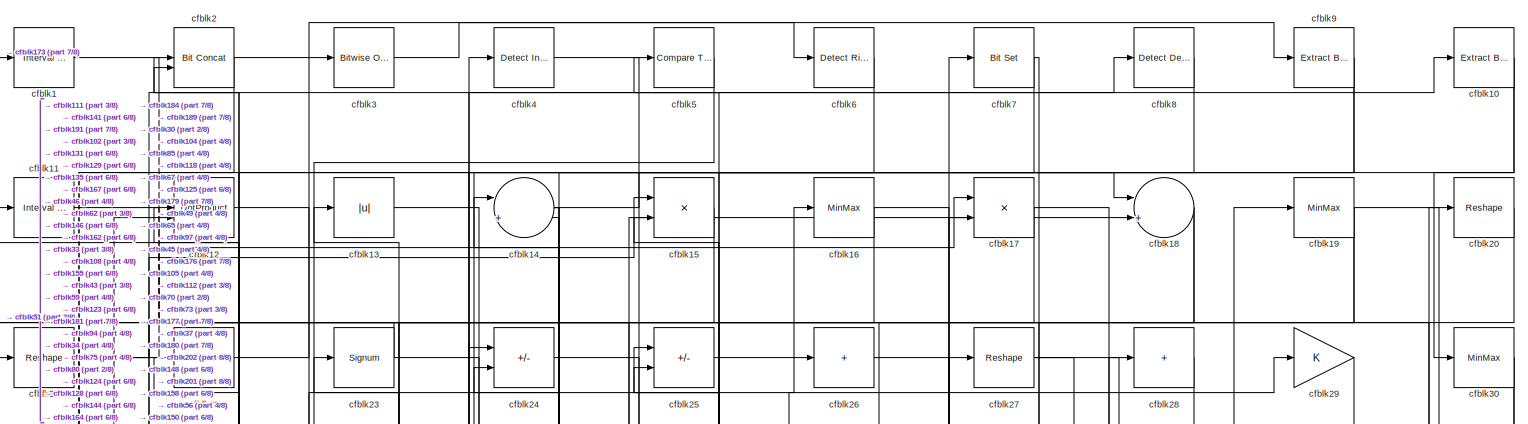
[diagram: root canvas - part 1/8, full width, top band]
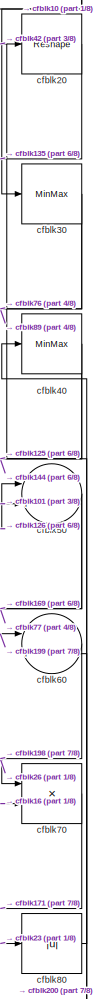
[diagram: root canvas - part 2/8, top right region]
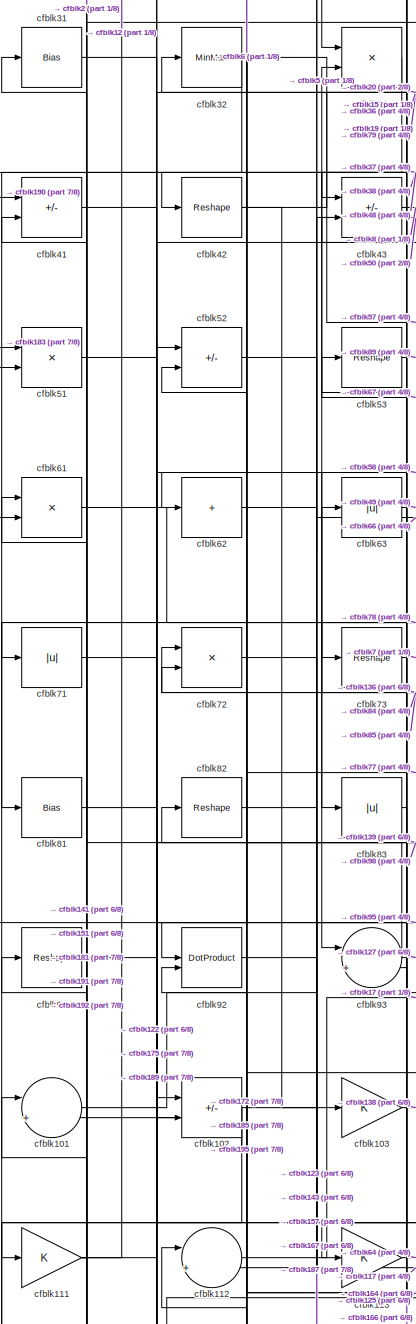
[diagram: root canvas - part 3/8, top left region]
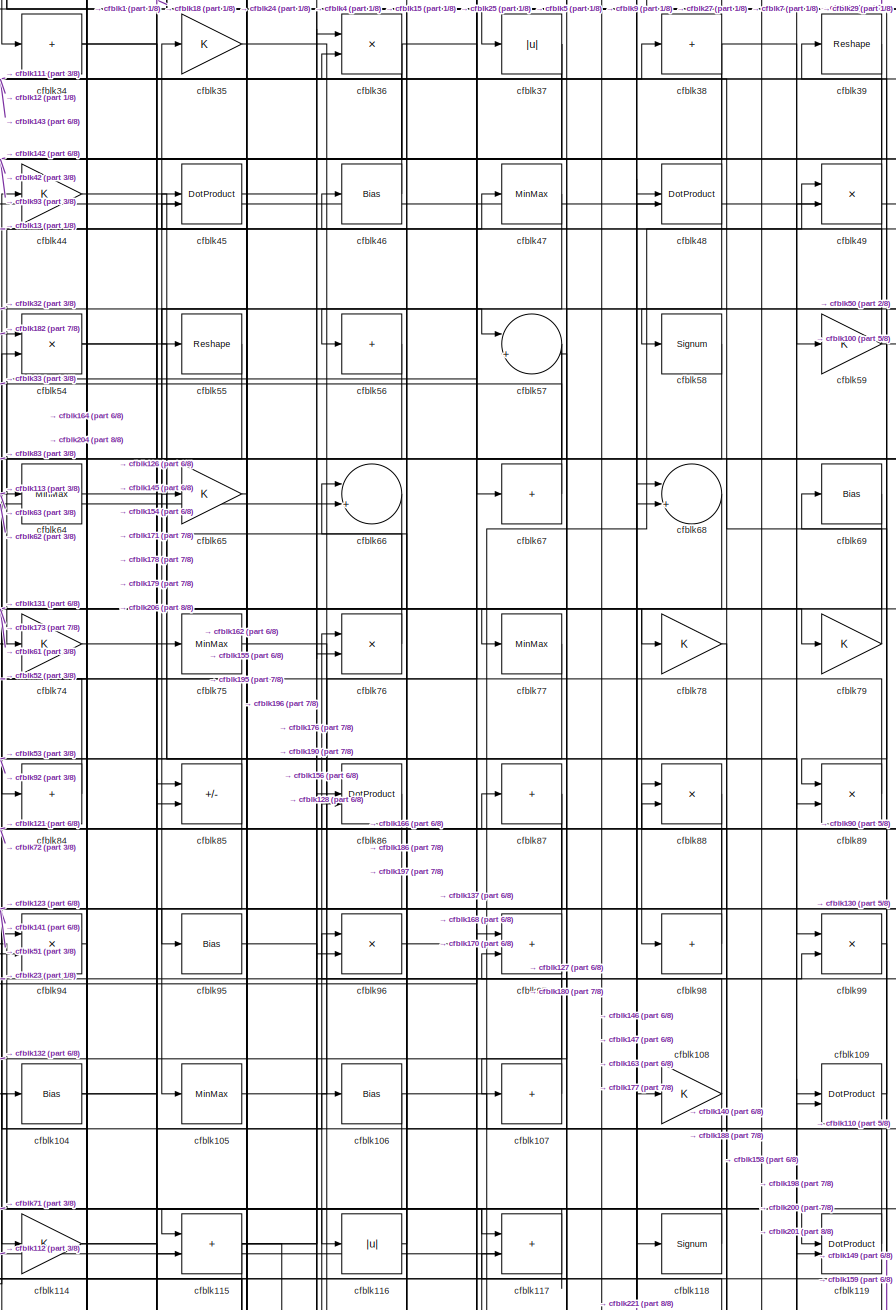
[diagram: root canvas - part 4/8, top center region]
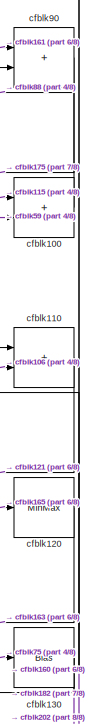
[diagram: root canvas - part 5/8, middle right region]
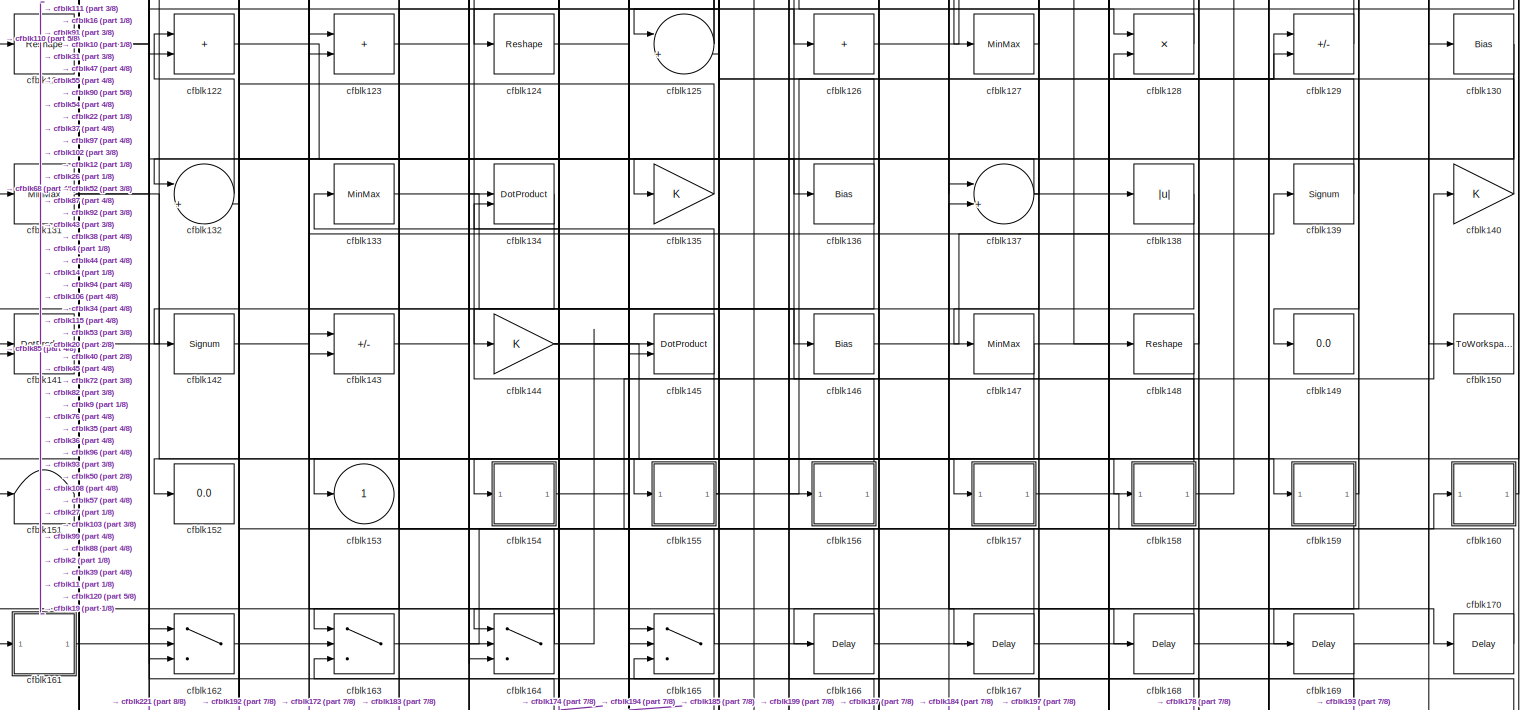
[diagram: root canvas - part 6/8, full width, middle band]
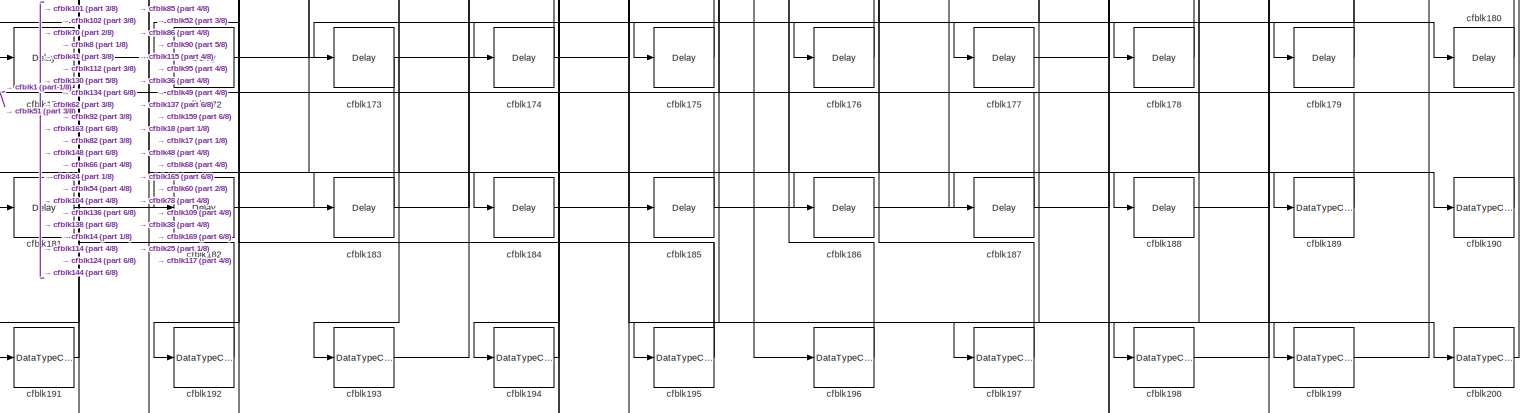
[diagram: root canvas - part 7/8, full width, bottom band]
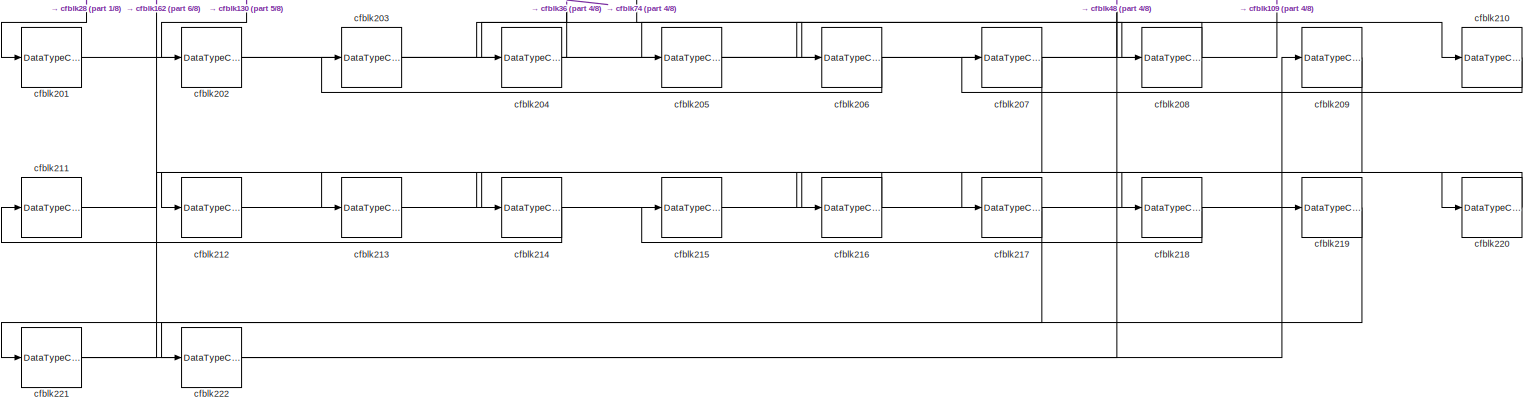
[diagram: root canvas - part 8/8, full width, bottom band]
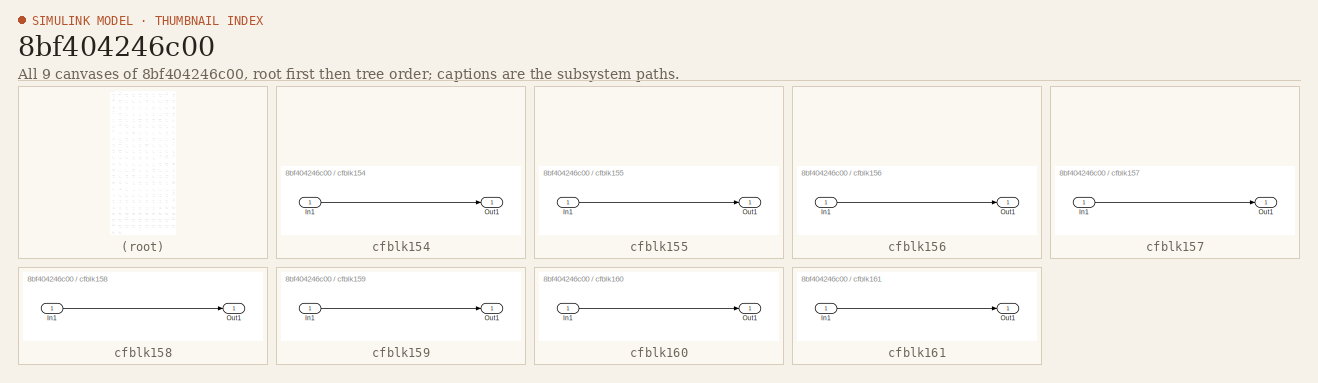
[diagram: thumbnail index - all 9 canvases of the model, root first then tree order]
MODEL slx_8bf404246c00
KIND model
CONFIG AbsTol = auto
CONFIG EnableMultiTasking = off
CONFIG FixedStep = auto
CONFIG MaxStep = auto
CONFIG MinStep = auto
CONFIG RelTol = 1e-3
CONFIG SampleTimeConstraint = Unconstrained
CONFIG SolverName = VariableStepAuto
CONFIG StartTime = 0.0
CONFIG StopTime = 10.0
BLOCK [Reference] cfblk1  REF=hdlsllib/Logic and Bit
Operations/Interval Test
  SourceBlock = hdlsllib/Logic and Bit\nOperations/Interval Test
  SourceType = Interval Test
BLOCK [Reference] cfblk10  REF=simulink/Logic and Bit
Operations/Extract Bits
  LibrarySourceBlock = hdlsllib/Logic and Bit\nOperations/Extract Bits
  SourceBlock = simulink/Logic and Bit\nOperations/Extract Bits
  SourceType = Extract Bits
BLOCK [Sum] cfblk100
  IconShape = rectangular
BLOCK [Sum] cfblk101
  Inputs = |++
BLOCK [Sum] cfblk102
  IconShape = rectangular
  Inputs = +-
BLOCK [Gain] cfblk103
BLOCK [Bias] cfblk104
  Bias = 0.0
  SaturateOnIntegerOverflow = off
BLOCK [MinMax] cfblk105
BLOCK [Bias] cfblk106
  Bias = 0.0
  SaturateOnIntegerOverflow = off
BLOCK [Sum] cfblk107
  IconShape = rectangular
  Inputs = +
BLOCK [Gain] cfblk108
BLOCK [DotProduct] cfblk109
  OutDataTypeStr = Inherit: Inherit via internal rule
BLOCK [Reference] cfblk11  REF=hdlsllib/Logic and Bit
Operations/Interval Test
  SourceBlock = hdlsllib/Logic and Bit\nOperations/Interval Test
  SourceType = Interval Test
BLOCK [Sum] cfblk110
  IconShape = rectangular
BLOCK [Gain] cfblk111
BLOCK [Sum] cfblk112
  Inputs = |++
BLOCK [Gain] cfblk113
BLOCK [Gain] cfblk114
BLOCK [Sum] cfblk115
  IconShape = rectangular
BLOCK [Abs] cfblk116
  SaturateOnIntegerOverflow = off
BLOCK [Sum] cfblk117
  IconShape = rectangular
BLOCK [Signum] cfblk118
BLOCK [DotProduct] cfblk119
  OutDataTypeStr = Inherit: Inherit via internal rule
BLOCK [DotProduct] cfblk12
  OutDataTypeStr = Inherit: Inherit via internal rule
BLOCK [MinMax] cfblk120
BLOCK [Reshape] cfblk121
BLOCK [Sum] cfblk122
  IconShape = rectangular
BLOCK [Sum] cfblk123
  IconShape = rectangular
BLOCK [Reshape] cfblk124
BLOCK [Sum] cfblk125
  Inputs = |++
BLOCK [Sum] cfblk126
  IconShape = rectangular
  Inputs = +
BLOCK [MinMax] cfblk127
BLOCK [Product] cfblk128
  Inputs = */
  RndMeth = Zero
  SaturateOnIntegerOverflow = on
BLOCK [Sum] cfblk129
  IconShape = rectangular
  Inputs = +-
BLOCK [Abs] cfblk13
  SaturateOnIntegerOverflow = off
BLOCK [Bias] cfblk130
  Bias = 0.0
  SaturateOnIntegerOverflow = off
BLOCK [MinMax] cfblk131
BLOCK [Sum] cfblk132
  Inputs = |++
BLOCK [MinMax] cfblk133
BLOCK [DotProduct] cfblk134
  OutDataTypeStr = Inherit: Inherit via internal rule
BLOCK [Gain] cfblk135
BLOCK [Bias] cfblk136
  Bias = 0.0
  SaturateOnIntegerOverflow = off
BLOCK [Sum] cfblk137
  Inputs = |++
BLOCK [Abs] cfblk138
  SaturateOnIntegerOverflow = off
BLOCK [Signum] cfblk139
BLOCK [Sum] cfblk14
  Inputs = |++
BLOCK [Gain] cfblk140
BLOCK [DotProduct] cfblk141
  OutDataTypeStr = Inherit: Inherit via internal rule
BLOCK [Signum] cfblk142
BLOCK [Sum] cfblk143
  IconShape = rectangular
  Inputs = +-
BLOCK [Gain] cfblk144
BLOCK [DotProduct] cfblk145
  OutDataTypeStr = Inherit: Inherit via internal rule
BLOCK [Bias] cfblk146
  Bias = 0.0
  SaturateOnIntegerOverflow = off
BLOCK [MinMax] cfblk147
BLOCK [Reshape] cfblk148
BLOCK [Display] cfblk149
  Decimation = 1
BLOCK [Product] cfblk15
  Inputs = */
  RndMeth = Zero
  SaturateOnIntegerOverflow = on
BLOCK [ToWorkspace] cfblk150
  MaxDataPoints = inf
  SampleTime = -1
  SaveFormat = Timeseries
  VariableName = simout
BLOCK [Terminator] cfblk151
BLOCK [Display] cfblk152
  Decimation = 1
BLOCK [Outport] cfblk153
  VectorParamsAs1DForOutWhenUnconnected = off
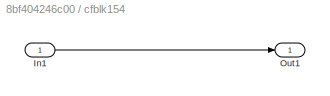
BLOCK [SubSystem] cfblk154
  LibrarySourceBlock = hdlsllib/Ports &\nSubsystems/Subsystem
BLOCK [Inport] cfblk154/In1
BLOCK [Outport] cfblk154/Out1
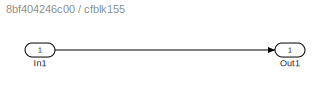
BLOCK [SubSystem] cfblk155
  LibrarySourceBlock = hdlsllib/Ports &\nSubsystems/Subsystem
BLOCK [Inport] cfblk155/In1
BLOCK [Outport] cfblk155/Out1
BLOCK [SubSystem] cfblk156
  LibrarySourceBlock = hdlsllib/Ports &\nSubsystems/Subsystem
BLOCK [Inport] cfblk156/In1
BLOCK [Outport] cfblk156/Out1
BLOCK [SubSystem] cfblk157
  LibrarySourceBlock = hdlsllib/Ports &\nSubsystems/Subsystem
BLOCK [Inport] cfblk157/In1
BLOCK [Outport] cfblk157/Out1
BLOCK [SubSystem] cfblk158
  LibrarySourceBlock = hdlsllib/Ports &\nSubsystems/Subsystem
BLOCK [Inport] cfblk158/In1
BLOCK [Outport] cfblk158/Out1
BLOCK [SubSystem] cfblk159
  LibrarySourceBlock = hdlsllib/Ports &\nSubsystems/Subsystem
BLOCK [Inport] cfblk159/In1
BLOCK [Outport] cfblk159/Out1
BLOCK [MinMax] cfblk16
BLOCK [SubSystem] cfblk160
  LibrarySourceBlock = hdlsllib/Ports &\nSubsystems/Subsystem
BLOCK [Inport] cfblk160/In1
BLOCK [Outport] cfblk160/Out1
BLOCK [SubSystem] cfblk161
  LibrarySourceBlock = hdlsllib/Ports &\nSubsystems/Subsystem
BLOCK [Inport] cfblk161/In1
BLOCK [Outport] cfblk161/Out1
BLOCK [Switch] cfblk162
  InputSameDT = off
  SaturateOnIntegerOverflow = off
BLOCK [Switch] cfblk163
  InputSameDT = off
  SaturateOnIntegerOverflow = off
BLOCK [Switch] cfblk164
  InputSameDT = off
  SaturateOnIntegerOverflow = off
BLOCK [Switch] cfblk165
  InputSameDT = off
  SaturateOnIntegerOverflow = off
BLOCK [Delay] cfblk166
  InputPortMap = u0
  SampleTime = 1
BLOCK [Delay] cfblk167
  InputPortMap = u0
  SampleTime = 1
BLOCK [Delay] cfblk168
  InputPortMap = u0
  SampleTime = 1
BLOCK [Delay] cfblk169
  InputPortMap = u0
  SampleTime = 1
BLOCK [Product] cfblk17
  Inputs = */
  RndMeth = Zero
  SaturateOnIntegerOverflow = on
BLOCK [Delay] cfblk170
  InputPortMap = u0
  SampleTime = 1
BLOCK [Delay] cfblk171
  InputPortMap = u0
  SampleTime = 1
BLOCK [Delay] cfblk172
  InputPortMap = u0
  SampleTime = 1
BLOCK [Delay] cfblk173
  InputPortMap = u0
  SampleTime = 1
BLOCK [Delay] cfblk174
  InputPortMap = u0
  SampleTime = 1
BLOCK [Delay] cfblk175
  InputPortMap = u0
  SampleTime = 1
BLOCK [Delay] cfblk176
  InputPortMap = u0
  SampleTime = 1
BLOCK [Delay] cfblk177
  InputPortMap = u0
  SampleTime = 1
BLOCK [Delay] cfblk178
  InputPortMap = u0
  SampleTime = 1
BLOCK [Delay] cfblk179
  InputPortMap = u0
  SampleTime = 1
BLOCK [Sum] cfblk18
  Inputs = |++
BLOCK [Delay] cfblk180
  InputPortMap = u0
  SampleTime = 1
BLOCK [Delay] cfblk181
  InputPortMap = u0
  SampleTime = 1
BLOCK [Delay] cfblk182
  InputPortMap = u0
  SampleTime = 1
BLOCK [Delay] cfblk183
  InputPortMap = u0
  SampleTime = 1
BLOCK [Delay] cfblk184
  InputPortMap = u0
  SampleTime = 1
BLOCK [Delay] cfblk185
  InputPortMap = u0
  SampleTime = 1
BLOCK [Delay] cfblk186
  InputPortMap = u0
  SampleTime = 1
BLOCK [Delay] cfblk187
  InputPortMap = u0
  SampleTime = 1
BLOCK [Delay] cfblk188
  InputPortMap = u0
  SampleTime = 1
BLOCK [DataTypeConversion] cfblk189
  OutDataTypeStr = uint8
  RndMeth = Floor
  SaturateOnIntegerOverflow = off
BLOCK [MinMax] cfblk19
BLOCK [DataTypeConversion] cfblk190
  OutDataTypeStr = uint8
  RndMeth = Floor
  SaturateOnIntegerOverflow = off
BLOCK [DataTypeConversion] cfblk191
  OutDataTypeStr = uint8
  RndMeth = Floor
  SaturateOnIntegerOverflow = off
BLOCK [DataTypeConversion] cfblk192
  OutDataTypeStr = uint8
  RndMeth = Floor
  SaturateOnIntegerOverflow = off
BLOCK [DataTypeConversion] cfblk193
  OutDataTypeStr = uint8
  RndMeth = Floor
  SaturateOnIntegerOverflow = off
BLOCK [DataTypeConversion] cfblk194
  OutDataTypeStr = uint8
  RndMeth = Floor
  SaturateOnIntegerOverflow = off
BLOCK [DataTypeConversion] cfblk195
  RndMeth = Floor
  SaturateOnIntegerOverflow = off
BLOCK [DataTypeConversion] cfblk196
  OutDataTypeStr = uint8
  RndMeth = Floor
  SaturateOnIntegerOverflow = off
BLOCK [DataTypeConversion] cfblk197
  OutDataTypeStr = uint8
  RndMeth = Floor
  SaturateOnIntegerOverflow = off
BLOCK [DataTypeConversion] cfblk198
  OutDataTypeStr = uint8
  RndMeth = Floor
  SaturateOnIntegerOverflow = off
BLOCK [DataTypeConversion] cfblk199
  OutDataTypeStr = uint8
  RndMeth = Floor
  SaturateOnIntegerOverflow = off
BLOCK [Reference] cfblk2  REF=hdlsllib/Logic and Bit
Operations/Bit Concat
  SourceBlock = hdlsllib/Logic and Bit\nOperations/Bit Concat
  SourceType = Bit Concat
BLOCK [Reshape] cfblk20
BLOCK [DataTypeConversion] cfblk200
  OutDataTypeStr = uint8
  RndMeth = Floor
  SaturateOnIntegerOverflow = off
BLOCK [DataTypeConversion] cfblk201
  OutDataTypeStr = uint8
  RndMeth = Floor
  SaturateOnIntegerOverflow = off
BLOCK [DataTypeConversion] cfblk202
  OutDataTypeStr = uint8
  RndMeth = Floor
  SaturateOnIntegerOverflow = off
BLOCK [DataTypeConversion] cfblk203
  RndMeth = Floor
  SaturateOnIntegerOverflow = off
BLOCK [DataTypeConversion] cfblk204
  OutDataTypeStr = uint8
  RndMeth = Floor
  SaturateOnIntegerOverflow = off
BLOCK [DataTypeConversion] cfblk205
  RndMeth = Floor
  SaturateOnIntegerOverflow = off
BLOCK [DataTypeConversion] cfblk206
  OutDataTypeStr = uint8
  RndMeth = Floor
  SaturateOnIntegerOverflow = off
BLOCK [DataTypeConversion] cfblk207
  RndMeth = Floor
  SaturateOnIntegerOverflow = off
BLOCK [DataTypeConversion] cfblk208
  OutDataTypeStr = uint8
  RndMeth = Floor
  SaturateOnIntegerOverflow = off
BLOCK [DataTypeConversion] cfblk209
  RndMeth = Floor
  SaturateOnIntegerOverflow = off
BLOCK [Reshape] cfblk21
BLOCK [DataTypeConversion] cfblk210
  OutDataTypeStr = uint8
  RndMeth = Floor
  SaturateOnIntegerOverflow = off
BLOCK [DataTypeConversion] cfblk211
  RndMeth = Floor
  SaturateOnIntegerOverflow = off
BLOCK [DataTypeConversion] cfblk212
  OutDataTypeStr = uint8
  RndMeth = Floor
  SaturateOnIntegerOverflow = off
BLOCK [DataTypeConversion] cfblk213
  RndMeth = Floor
  SaturateOnIntegerOverflow = off
BLOCK [DataTypeConversion] cfblk214
  OutDataTypeStr = uint8
  RndMeth = Floor
  SaturateOnIntegerOverflow = off
BLOCK [DataTypeConversion] cfblk215
  RndMeth = Floor
  SaturateOnIntegerOverflow = off
BLOCK [DataTypeConversion] cfblk216
  OutDataTypeStr = uint8
  RndMeth = Floor
  SaturateOnIntegerOverflow = off
BLOCK [DataTypeConversion] cfblk217
  RndMeth = Floor
  SaturateOnIntegerOverflow = off
BLOCK [DataTypeConversion] cfblk218
  OutDataTypeStr = uint8
  RndMeth = Floor
  SaturateOnIntegerOverflow = off
BLOCK [DataTypeConversion] cfblk219
  RndMeth = Floor
  SaturateOnIntegerOverflow = off
BLOCK [MinMax] cfblk22
BLOCK [DataTypeConversion] cfblk220
  OutDataTypeStr = uint8
  RndMeth = Floor
  SaturateOnIntegerOverflow = off
BLOCK [DataTypeConversion] cfblk221
  RndMeth = Floor
  SaturateOnIntegerOverflow = off
BLOCK [DataTypeConversion] cfblk222
  OutDataTypeStr = uint8
  RndMeth = Floor
  SaturateOnIntegerOverflow = off
BLOCK [Signum] cfblk23
BLOCK [Sum] cfblk24
  IconShape = rectangular
  Inputs = +-
BLOCK [Sum] cfblk25
  IconShape = rectangular
  Inputs = +-
BLOCK [Sum] cfblk26
  IconShape = rectangular
  Inputs = +
BLOCK [Reshape] cfblk27
BLOCK [Sum] cfblk28
  IconShape = rectangular
  Inputs = +
BLOCK [Gain] cfblk29
BLOCK [Reference] cfblk3  REF=simulink/Logic and Bit
Operations/Bitwise
Operator
  LibrarySourceBlock = hdlsllib/Logic and Bit\nOperations/Bitwise\nOperator
  SourceBlock = simulink/Logic and Bit\nOperations/Bitwise\nOperator
  SourceType = Bitwise Operator
BLOCK [MinMax] cfblk30
BLOCK [Bias] cfblk31
  Bias = 0.0
  SaturateOnIntegerOverflow = off
BLOCK [MinMax] cfblk32
BLOCK [Product] cfblk33
  Inputs = */
  RndMeth = Zero
  SaturateOnIntegerOverflow = on
BLOCK [Sum] cfblk34
  IconShape = rectangular
  Inputs = +
BLOCK [Gain] cfblk35
BLOCK [Product] cfblk36
  Inputs = */
  RndMeth = Zero
  SaturateOnIntegerOverflow = on
BLOCK [Abs] cfblk37
  SaturateOnIntegerOverflow = off
BLOCK [Sum] cfblk38
  IconShape = rectangular
  Inputs = +
BLOCK [Reshape] cfblk39
BLOCK [Reference] cfblk4  REF=simulink/Logic and Bit
Operations/Detect
Increase
  LibrarySourceBlock = hdlsllib/Logic and Bit\nOperations/Detect\nIncrease
  SourceBlock = simulink/Logic and Bit\nOperations/Detect\nIncrease
  SourceType = Detect Increase
BLOCK [MinMax] cfblk40
BLOCK [Sum] cfblk41
  IconShape = rectangular
  Inputs = +-
BLOCK [Reshape] cfblk42
BLOCK [Sum] cfblk43
  IconShape = rectangular
  Inputs = +-
BLOCK [Gain] cfblk44
BLOCK [DotProduct] cfblk45
  OutDataTypeStr = Inherit: Inherit via internal rule
BLOCK [Bias] cfblk46
  Bias = 0.0
  SaturateOnIntegerOverflow = off
BLOCK [MinMax] cfblk47
BLOCK [DotProduct] cfblk48
  OutDataTypeStr = Inherit: Inherit via internal rule
BLOCK [Product] cfblk49
  Inputs = */
  RndMeth = Zero
  SaturateOnIntegerOverflow = on
BLOCK [Reference] cfblk5  REF=hdlsllib/Logic and Bit
Operations/Compare
To Constant
  SourceBlock = hdlsllib/Logic and Bit\nOperations/Compare\nTo Constant
  SourceType = Compare To Constant
BLOCK [Sum] cfblk50
  Inputs = |++
BLOCK [Product] cfblk51
  Inputs = */
  RndMeth = Zero
  SaturateOnIntegerOverflow = on
BLOCK [Sum] cfblk52
  IconShape = rectangular
  Inputs = +-
BLOCK [Reshape] cfblk53
BLOCK [Product] cfblk54
  Inputs = */
  RndMeth = Zero
  SaturateOnIntegerOverflow = on
BLOCK [Reshape] cfblk55
BLOCK [Sum] cfblk56
  IconShape = rectangular
  Inputs = +
BLOCK [Sum] cfblk57
  Inputs = |++
BLOCK [Signum] cfblk58
BLOCK [Gain] cfblk59
BLOCK [Reference] cfblk6  REF=hdlsllib/Logic and Bit
Operations/Detect Rise
Nonnegative
  SourceBlock = hdlsllib/Logic and Bit\nOperations/Detect Rise\nNonnegative
  SourceType = Detect Rise Nonnegative
BLOCK [Sum] cfblk60
  Inputs = |++
BLOCK [Product] cfblk61
  Inputs = */
  RndMeth = Zero
  SaturateOnIntegerOverflow = on
BLOCK [Sum] cfblk62
  IconShape = rectangular
  Inputs = +
BLOCK [Abs] cfblk63
  SaturateOnIntegerOverflow = off
BLOCK [MinMax] cfblk64
BLOCK [Gain] cfblk65
BLOCK [Sum] cfblk66
  Inputs = |++
BLOCK [Sum] cfblk67
  IconShape = rectangular
  Inputs = +
BLOCK [Sum] cfblk68
  Inputs = |++
BLOCK [Bias] cfblk69
  Bias = 0.0
  SaturateOnIntegerOverflow = off
BLOCK [Reference] cfblk7  REF=simulink/Logic and Bit
Operations/Bit Set
  LibrarySourceBlock = hdlsllib/Logic and Bit\nOperations/Bit Set
  SourceBlock = simulink/Logic and Bit\nOperations/Bit Set
  SourceType = Bit Set
BLOCK [Product] cfblk70
  Inputs = */
  RndMeth = Zero
  SaturateOnIntegerOverflow = on
BLOCK [Abs] cfblk71
  SaturateOnIntegerOverflow = off
BLOCK [Product] cfblk72
  Inputs = */
  RndMeth = Zero
  SaturateOnIntegerOverflow = on
BLOCK [Reshape] cfblk73
BLOCK [Gain] cfblk74
BLOCK [MinMax] cfblk75
BLOCK [Product] cfblk76
  Inputs = */
  RndMeth = Zero
  SaturateOnIntegerOverflow = on
BLOCK [MinMax] cfblk77
BLOCK [Gain] cfblk78
BLOCK [Gain] cfblk79
BLOCK [Reference] cfblk8  REF=simulink/Logic and Bit
Operations/Detect
Decrease
  LibrarySourceBlock = hdlsllib/Logic and Bit\nOperations/Detect\nDecrease
  SourceBlock = simulink/Logic and Bit\nOperations/Detect\nDecrease
  SourceType = Detect Decrease
BLOCK [Abs] cfblk80
  SaturateOnIntegerOverflow = off
BLOCK [Bias] cfblk81
  Bias = 0.0
  SaturateOnIntegerOverflow = off
BLOCK [Reshape] cfblk82
BLOCK [Abs] cfblk83
  SaturateOnIntegerOverflow = off
BLOCK [Sum] cfblk84
  IconShape = rectangular
  Inputs = +
BLOCK [Sum] cfblk85
  IconShape = rectangular
  Inputs = +-
BLOCK [DotProduct] cfblk86
  OutDataTypeStr = Inherit: Inherit via internal rule
BLOCK [Sum] cfblk87
  IconShape = rectangular
  Inputs = +
BLOCK [Product] cfblk88
  Inputs = */
  RndMeth = Zero
  SaturateOnIntegerOverflow = on
BLOCK [Product] cfblk89
  Inputs = */
  RndMeth = Zero
  SaturateOnIntegerOverflow = on
BLOCK [Reference] cfblk9  REF=simulink/Logic and Bit
Operations/Extract Bits
  LibrarySourceBlock = hdlsllib/Logic and Bit\nOperations/Extract Bits
  SourceBlock = simulink/Logic and Bit\nOperations/Extract Bits
  SourceType = Extract Bits
BLOCK [Sum] cfblk90
  IconShape = rectangular
BLOCK [Reshape] cfblk91
BLOCK [DotProduct] cfblk92
  OutDataTypeStr = Inherit: Inherit via internal rule
BLOCK [Sum] cfblk93
  Inputs = |++
BLOCK [Product] cfblk94
  Inputs = */
  RndMeth = Zero
  SaturateOnIntegerOverflow = on
BLOCK [Bias] cfblk95
  Bias = 0.0
  SaturateOnIntegerOverflow = off
BLOCK [Product] cfblk96
  Inputs = */
  RndMeth = Zero
  SaturateOnIntegerOverflow = on
BLOCK [Sum] cfblk97
  IconShape = rectangular
BLOCK [Sum] cfblk98
  IconShape = rectangular
  Inputs = +
BLOCK [Product] cfblk99
  Inputs = */
  RndMeth = Zero
  SaturateOnIntegerOverflow = on
LINE cfblk100:1 -> cfblk88:2
LINE cfblk101:1 -> cfblk50:2
NET cfblk102:1 -> cfblk101:2, cfblk157:1, cfblk181:1
LINE cfblk103:1 -> cfblk138:1
NET cfblk104:1 -> cfblk116:1, cfblk18:2
LINE cfblk105:1 -> cfblk27:1
NET cfblk106:1 -> cfblk110:2, cfblk145:2
LINE cfblk107:1 -> cfblk46:1
NET cfblk108:1 -> cfblk147:1, cfblk23:1
LINE cfblk109:1 -> cfblk69:1
NET cfblk10:1 -> cfblk164:1, cfblk30:1
LINE cfblk110:1 -> cfblk121:1
NET cfblk111:1 -> cfblk12:2, cfblk151:1, cfblk31:1, cfblk36:2
LINE cfblk112:1 -> cfblk17:2
LINE cfblk113:1 -> cfblk64:1
NET cfblk114:1 -> cfblk178:1, cfblk179:1
NET cfblk115:1 -> cfblk100:1, cfblk162:2, cfblk196:1, cfblk90:2
LINE cfblk116:1 -> cfblk66:1
NET cfblk117:1 -> cfblk112:2, cfblk114:1
LINE cfblk118:1 -> cfblk96:1
LINE cfblk119:1 -> cfblk94:1
LINE cfblk11:1 -> cfblk150:1
LINE cfblk120:1 -> cfblk163:1
NET cfblk121:1 -> cfblk47:1, cfblk87:1
LINE cfblk122:1 -> cfblk165:1
LINE cfblk123:1 -> cfblk4:1
LINE cfblk124:1 -> cfblk185:1
NET cfblk125:1 -> cfblk11:1, cfblk53:1
LINE cfblk126:1 -> cfblk50:1
LINE cfblk127:1 -> cfblk97:2
LINE cfblk128:1 -> cfblk14:1
LINE cfblk129:1 -> cfblk2:1
LINE cfblk12:1 -> cfblk146:1
NET cfblk130:1 -> cfblk182:1, cfblk202:1
NET cfblk131:1 -> cfblk10:1, cfblk158:1
LINE cfblk132:1 -> cfblk122:1
LINE cfblk133:1 -> cfblk156:1
LINE cfblk134:1 -> cfblk192:1
LINE cfblk135:1 -> cfblk22:1
NET cfblk136:1 -> cfblk194:1, cfblk72:1
NET cfblk137:1 -> cfblk129:2, cfblk132:1, cfblk57:2
LINE cfblk138:1 -> cfblk174:1
LINE cfblk139:1 -> cfblk82:1
LINE cfblk13:1 -> cfblk75:1
LINE cfblk140:1 -> cfblk88:1
NET cfblk141:1 -> cfblk54:2, cfblk91:1
LINE cfblk142:1 -> cfblk139:1
LINE cfblk143:1 -> cfblk38:1
NET cfblk144:1 -> cfblk14:2, cfblk159:1, cfblk199:1
NET cfblk145:1 -> cfblk133:1, cfblk153:1
LINE cfblk146:1 -> cfblk108:1
NET cfblk147:1 -> cfblk152:1, cfblk99:2
NET cfblk148:1 -> cfblk128:2, cfblk183:1
NET cfblk14:1 -> cfblk124:1, cfblk184:1, cfblk18:1
LINE cfblk154/In1:1 -> cfblk154/Out1:1
LINE cfblk154:1 -> cfblk106:1
LINE cfblk155/In1:1 -> cfblk155/Out1:1
NET cfblk155:1 -> cfblk129:1, cfblk45:2
LINE cfblk156/In1:1 -> cfblk156/Out1:1
LINE cfblk156:1 -> cfblk76:1
LINE cfblk157/In1:1 -> cfblk157/Out1:1
LINE cfblk157:1 -> cfblk160:1
LINE cfblk158/In1:1 -> cfblk158/Out1:1
NET cfblk158:1 -> cfblk19:1, cfblk44:1
LINE cfblk159/In1:1 -> cfblk159/Out1:1
NET cfblk159:1 -> cfblk197:1, cfblk39:1
LINE cfblk15:1 -> cfblk73:1
LINE cfblk160/In1:1 -> cfblk160/Out1:1
LINE cfblk160:1 -> cfblk110:1
LINE cfblk161/In1:1 -> cfblk161/Out1:1
LINE cfblk161:1 -> cfblk90:1
LINE cfblk162:1 -> cfblk26:1
LINE cfblk163:1 -> cfblk68:1
NET cfblk164:1 -> cfblk145:1, cfblk161:1, cfblk43:2
NET cfblk165:1 -> cfblk120:1, cfblk140:1
LINE cfblk166:1 -> cfblk93:2
LINE cfblk167:1 -> cfblk2:2
LINE cfblk168:1 -> cfblk97:1
LINE cfblk169:1 -> cfblk193:1
NET cfblk16:1 -> cfblk141:1, cfblk70:2
LINE cfblk170:1 -> cfblk143:1
LINE cfblk171:1 -> cfblk85:1
LINE cfblk172:1 -> cfblk163:2
LINE cfblk173:1 -> cfblk1:1
LINE cfblk174:1 -> cfblk163:3
LINE cfblk175:1 -> cfblk52:1
LINE cfblk176:1 -> cfblk36:1
LINE cfblk177:1 -> cfblk48:1
LINE cfblk178:1 -> cfblk165:2
LINE cfblk179:1 -> cfblk25:2
NET cfblk17:1 -> cfblk180:1, cfblk51:2
LINE cfblk180:1 -> cfblk117:2
LINE cfblk181:1 -> cfblk24:1
LINE cfblk182:1 -> cfblk54:1
LINE cfblk183:1 -> cfblk51:1
LINE cfblk184:1 -> cfblk137:2
LINE cfblk185:1 -> cfblk112:1
LINE cfblk186:1 -> cfblk68:2
LINE cfblk187:1 -> cfblk165:3
LINE cfblk188:1 -> cfblk49:2
LINE cfblk189:1 -> cfblk24:2
NET cfblk18:1 -> cfblk176:1, cfblk177:1
LINE cfblk190:1 -> cfblk41:1
LINE cfblk191:1 -> cfblk41:2
LINE cfblk192:1 -> cfblk101:1
LINE cfblk193:1 -> cfblk134:1
LINE cfblk194:1 -> cfblk134:2
NET cfblk195:1 -> cfblk104:1, cfblk92:2
LINE cfblk196:1 -> cfblk86:1
LINE cfblk197:1 -> cfblk86:2
LINE cfblk198:1 -> cfblk109:1
LINE cfblk199:1 -> cfblk60:1
NET cfblk19:1 -> cfblk102:2, cfblk155:1, cfblk43:1
LINE cfblk1:1 -> cfblk85:2
LINE cfblk200:1 -> cfblk60:2
LINE cfblk201:1 -> cfblk109:2
LINE cfblk202:1 -> cfblk28:1
LINE cfblk203:1 -> cfblk208:1
LINE cfblk204:1 -> cfblk74:1
LINE cfblk205:1 -> cfblk210:1
LINE cfblk206:1 -> cfblk203:1
LINE cfblk207:1 -> cfblk212:1
LINE cfblk208:1 -> cfblk205:1
LINE cfblk209:1 -> cfblk214:1
LINE cfblk20:1 -> cfblk135:1
LINE cfblk210:1 -> cfblk207:1
LINE cfblk211:1 -> cfblk216:1
LINE cfblk212:1 -> cfblk209:1
LINE cfblk213:1 -> cfblk218:1
LINE cfblk214:1 -> cfblk211:1
LINE cfblk215:1 -> cfblk220:1
LINE cfblk216:1 -> cfblk213:1
LINE cfblk217:1 -> cfblk222:1
LINE cfblk218:1 -> cfblk215:1
LINE cfblk219:1 -> cfblk221:1
NET cfblk21:1 -> cfblk15:2, cfblk17:1
LINE cfblk220:1 -> cfblk217:1
NET cfblk221:1 -> cfblk162:1, cfblk48:2
LINE cfblk222:1 -> cfblk219:1
LINE cfblk22:1 -> cfblk3:1
NET cfblk23:1 -> cfblk21:1, cfblk80:1
LINE cfblk24:1 -> cfblk67:1
LINE cfblk25:1 -> cfblk16:1
LINE cfblk26:1 -> cfblk70:1
NET cfblk27:1 -> cfblk148:1, cfblk59:1
LINE cfblk28:1 -> cfblk201:1
LINE cfblk29:1 -> cfblk56:1
NET cfblk2:1 -> cfblk111:1, cfblk9:1
NET cfblk30:1 -> cfblk76:2, cfblk89:1
LINE cfblk31:1 -> cfblk136:1
NET cfblk32:1 -> cfblk57:1, cfblk71:1
LINE cfblk33:1 -> cfblk81:1
NET cfblk34:1 -> cfblk119:2, cfblk126:1
LINE cfblk35:1 -> cfblk128:1
NET cfblk36:1 -> cfblk164:2, cfblk164:3, cfblk170:1, cfblk204:1
NET cfblk37:1 -> cfblk142:1, cfblk61:2, cfblk65:1
NET cfblk38:1 -> cfblk107:1, cfblk200:1, cfblk93:1
LINE cfblk39:1 -> cfblk55:1
LINE cfblk3:1 -> cfblk6:1
NET cfblk40:1 -> cfblk125:2, cfblk144:1
LINE cfblk41:1 -> cfblk189:1
NET cfblk42:1 -> cfblk103:1, cfblk20:1
LINE cfblk43:1 -> cfblk8:1
LINE cfblk44:1 -> cfblk99:1
LINE cfblk45:1 -> cfblk29:1
LINE cfblk46:1 -> cfblk12:1
LINE cfblk47:1 -> cfblk105:1
NET cfblk48:1 -> cfblk42:1, cfblk58:1
NET cfblk49:1 -> cfblk15:1, cfblk186:1
LINE cfblk4:1 -> cfblk118:1
NET cfblk50:1 -> cfblk169:1, cfblk77:1
LINE cfblk51:1 -> cfblk95:1
LINE cfblk52:1 -> cfblk143:2
LINE cfblk53:1 -> cfblk89:2
NET cfblk54:1 -> cfblk119:1, cfblk137:1
LINE cfblk55:1 -> cfblk162:3
LINE cfblk56:1 -> cfblk84:1
NET cfblk57:1 -> cfblk115:1, cfblk96:2
LINE cfblk58:1 -> cfblk83:1
NET cfblk59:1 -> cfblk100:2, cfblk13:1
LINE cfblk5:1 -> cfblk33:1
LINE cfblk60:1 -> cfblk198:1
LINE cfblk61:1 -> cfblk78:1
NET cfblk62:1 -> cfblk172:1, cfblk66:2
LINE cfblk63:1 -> cfblk49:1
LINE cfblk64:1 -> cfblk79:1
LINE cfblk65:1 -> cfblk5:1
LINE cfblk66:1 -> cfblk173:1
LINE cfblk67:1 -> cfblk33:2
LINE cfblk68:1 -> cfblk131:1
LINE cfblk69:1 -> cfblk98:1
LINE cfblk6:1 -> cfblk62:1
LINE cfblk70:1 -> cfblk171:1
LINE cfblk71:1 -> cfblk117:1
LINE cfblk72:1 -> cfblk167:1
LINE cfblk73:1 -> cfblk7:1
LINE cfblk74:1 -> cfblk206:1
LINE cfblk75:1 -> cfblk130:1
LINE cfblk76:1 -> cfblk35:1
LINE cfblk77:1 -> cfblk92:1
LINE cfblk78:1 -> cfblk188:1
LINE cfblk79:1 -> cfblk32:1
NET cfblk7:1 -> cfblk34:1, cfblk37:1
LINE cfblk80:1 -> cfblk40:1
LINE cfblk81:1 -> cfblk102:1
LINE cfblk82:1 -> cfblk187:1
LINE cfblk83:1 -> cfblk113:1
LINE cfblk84:1 -> cfblk63:1
NET cfblk85:1 -> cfblk141:2, cfblk52:2
LINE cfblk86:1 -> cfblk195:1
NET cfblk87:1 -> cfblk115:2, cfblk123:2
LINE cfblk88:1 -> cfblk166:1
LINE cfblk89:1 -> cfblk45:1
LINE cfblk8:1 -> cfblk191:1
LINE cfblk90:1 -> cfblk175:1
LINE cfblk91:1 -> cfblk122:2
LINE cfblk92:1 -> cfblk123:1
NET cfblk93:1 -> cfblk127:1, cfblk61:1
LINE cfblk94:1 -> cfblk154:1
LINE cfblk95:1 -> cfblk190:1
LINE cfblk96:1 -> cfblk168:1
NET cfblk97:1 -> cfblk132:2, cfblk25:1
LINE cfblk98:1 -> cfblk72:2
LINE cfblk99:1 -> cfblk149:1
NET cfblk9:1 -> cfblk125:1, cfblk94:2
note: NET lines group one-source signal fan-out (src -> all destinations, sorted); 1:1 wires keep LINE
